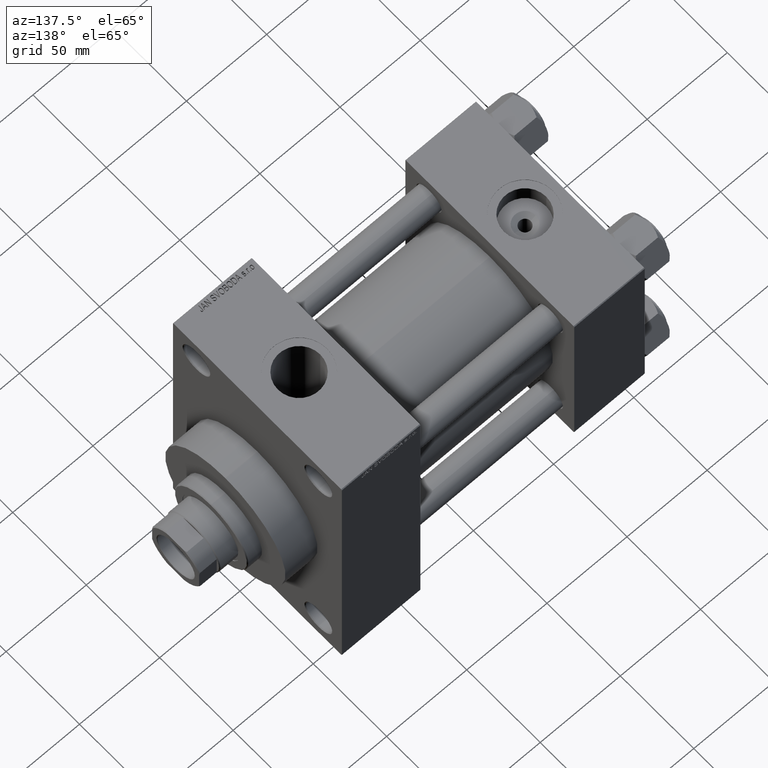
[diagram: clean part render]
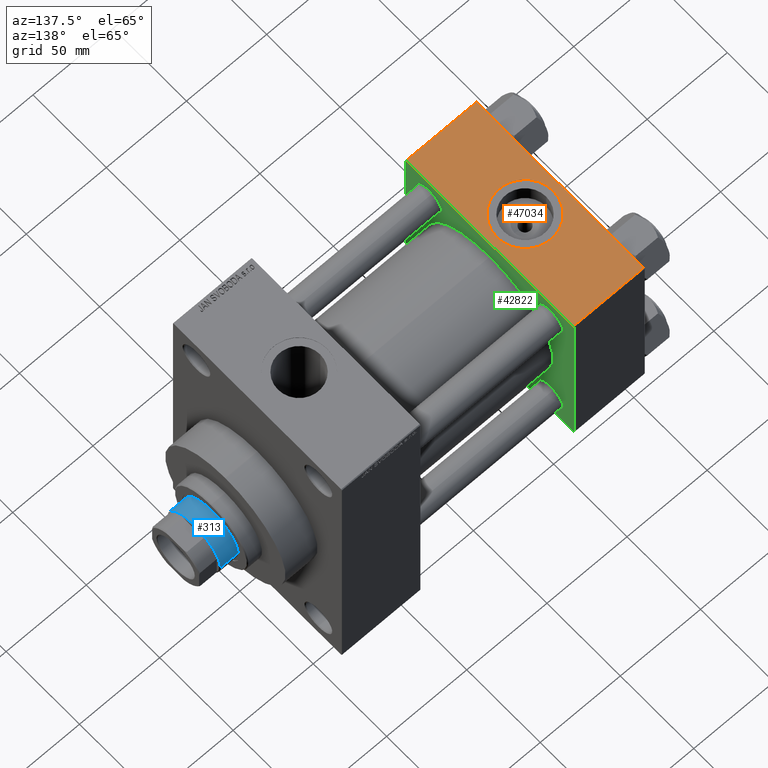
[diagram: same view with three faces highlighted in distinct colors, each labeled with its STEP entity id]
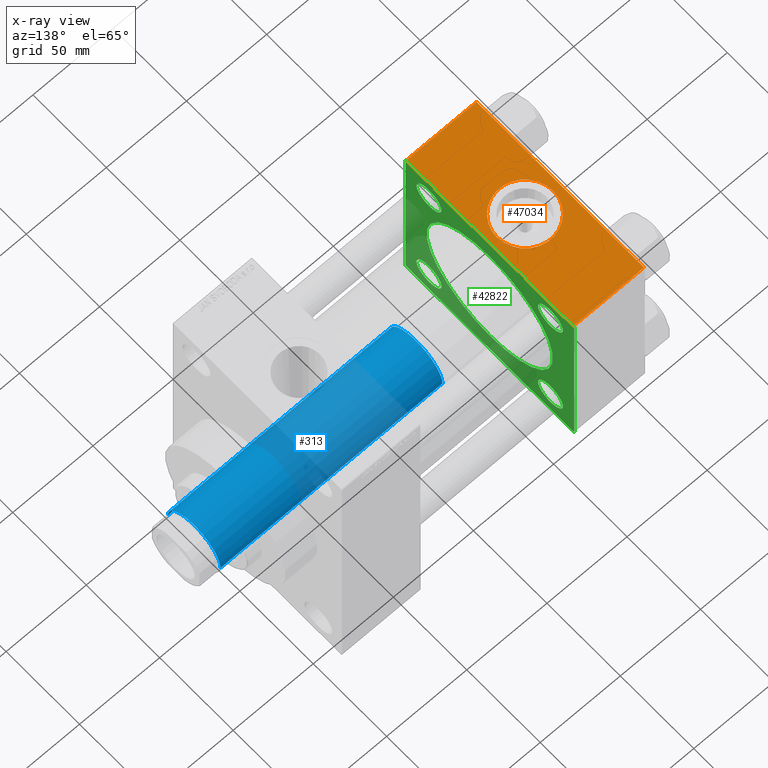
[diagram: x-ray of the same camera — body ghosted, the three highlighted faces saturated]
A machine part, auxiliary view with three faces highlighted in distinct colors.
The next image is the same camera in x-ray (body ghosted, the three faces saturated) — at least one of them is partly hidden behind the body in this view.
Their STEP definitions:

[orange] entity #47034 — the highlighted planar face has unit normal (0, 0, -1).
#345 = FACE_OUTER_BOUND ( 'NONE', #2074, .T. ) ;
#806 = VECTOR ( 'NONE', #2019, 1000.000000000000000 ) ;
#1902 = CARTESIAN_POINT ( 'NONE',  ( 44.00000000000000000, -57.00000000000003553, 57.49999999999999289 ) ) ;
#2019 = DIRECTION ( 'NONE',  ( 0.000000000000000000, -1.000000000000000000, -1.206764157201257045E-16 ) ) ;
#2074 = EDGE_LOOP ( 'NONE', ( #25053, #15285, #14629, #14572 ) ) ;
#3746 = VERTEX_POINT ( 'NONE', #45024 ) ;
#4203 = DIRECTION ( 'NONE',  ( 0.000000000000000000, 1.206764157201257045E-16, -1.000000000000000000 ) ) ;
#5357 = CARTESIAN_POINT ( 'NONE',  ( 0.000000000000000000, 57.00000000000000711, 57.50000000000000711 ) ) ;
#5647 = LINE ( 'NONE', #46583, #806 ) ;
#8378 = VECTOR ( 'NONE', #31383, 1000.000000000000000 ) ;
#10355 = DIRECTION ( 'NONE',  ( 0.000000000000000000, -1.000000000000000000, -1.206764157201257045E-16 ) ) ;
#10993 = CARTESIAN_POINT ( 'NONE',  ( 22.00000000000000000, -8.673617379884035472E-15, 57.50000000000000000 ) ) ;
#12166 = PLANE ( 'NONE',  #46233 ) ;
#13172 = CARTESIAN_POINT ( 'NONE',  ( 39.50000000000000000, -8.673617379884035472E-15, 57.50000000000000000 ) ) ;
#14012 = EDGE_CURVE ( 'NONE', #36218, #3746, #47196, .T. ) ;
#14572 = ORIENTED_EDGE ( 'NONE', *, *, #38590, .T. ) ;
#14629 = ORIENTED_EDGE ( 'NONE', *, *, #47182, .F. ) ;
#15285 = ORIENTED_EDGE ( 'NONE', *, *, #40711, .T. ) ;
#16393 = LINE ( 'NONE', #1902, #32325 ) ;
#16534 = VERTEX_POINT ( 'NONE', #43621 ) ;
#16944 = CARTESIAN_POINT ( 'NONE',  ( 0.000000000000000000, 57.00000000000000711, 57.50000000000000711 ) ) ;
#17121 = VERTEX_POINT ( 'NONE', #34580 ) ;
#18342 = VERTEX_POINT ( 'NONE', #13172 ) ;
#22298 = DIRECTION ( 'NONE',  ( 0.000000000000000000, 0.000000000000000000, 1.000000000000000000 ) ) ;
#23120 = AXIS2_PLACEMENT_3D ( 'NONE', #10993, #22298, #25433 ) ;
#24853 = LINE ( 'NONE', #16944, #8378 ) ;
#25053 = ORIENTED_EDGE ( 'NONE', *, *, #14012, .T. ) ;
#25433 = DIRECTION ( 'NONE',  ( 1.000000000000000000, 0.000000000000000000, 0.000000000000000000 ) ) ;
#26606 = DIRECTION ( 'NONE',  ( 0.000000000000000000, 1.000000000000000000, 1.206764157201257045E-16 ) ) ;
#29990 = FACE_BOUND ( 'NONE', #36593, .T. ) ;
#31383 = DIRECTION ( 'NONE',  ( -1.000000000000000000, 0.000000000000000000, 0.000000000000000000 ) ) ;
#31592 = CIRCLE ( 'NONE', #23120, 17.50000000000000000 ) ;
#32325 = VECTOR ( 'NONE', #38309, 1000.000000000000000 ) ;
#34098 = VECTOR ( 'NONE', #10355, 1000.000000000000000 ) ;
#34404 = CIRCLE ( 'NONE', #40557, 17.50000000000000000 ) ;
#34576 = EDGE_CURVE ( 'NONE', #45565, #18342, #34404, .T. ) ;
#34580 = CARTESIAN_POINT ( 'NONE',  ( 44.00000000000000000, -57.00000000000003553, 57.49999999999999289 ) ) ;
#36218 = VERTEX_POINT ( 'NONE', #5357 ) ;
#36593 = EDGE_LOOP ( 'NONE', ( #41360, #40649 ) ) ;
#37471 = CARTESIAN_POINT ( 'NONE',  ( 44.00000000000000000, 57.49999999999999289, 57.50000000000000711 ) ) ;
#38309 = DIRECTION ( 'NONE',  ( 1.000000000000000000, 0.000000000000000000, 0.000000000000000000 ) ) ;
#38590 = EDGE_CURVE ( 'NONE', #16534, #36218, #24853, .T. ) ;
#39607 = CARTESIAN_POINT ( 'NONE',  ( 22.00000000000000000, -8.673617379884035472E-15, 57.50000000000000000 ) ) ;
#39758 = CARTESIAN_POINT ( 'NONE',  ( 0.000000000000000000, 57.49999999999999289, 57.50000000000000711 ) ) ;
#40431 = CARTESIAN_POINT ( 'NONE',  ( 4.499999999999997335, -6.530485481376167224E-15, 57.50000000000000000 ) ) ;
#40557 = AXIS2_PLACEMENT_3D ( 'NONE', #39607, #42263, #42968 ) ;
#40649 = ORIENTED_EDGE ( 'NONE', *, *, #34576, .F. ) ;
#40711 = EDGE_CURVE ( 'NONE', #3746, #17121, #16393, .T. ) ;
#41360 = ORIENTED_EDGE ( 'NONE', *, *, #42442, .F. ) ;
#42263 = DIRECTION ( 'NONE',  ( 0.000000000000000000, 0.000000000000000000, 1.000000000000000000 ) ) ;
#42442 = EDGE_CURVE ( 'NONE', #18342, #45565, #31592, .T. ) ;
#42968 = DIRECTION ( 'NONE',  ( 1.000000000000000000, 0.000000000000000000, 0.000000000000000000 ) ) ;
#43621 = CARTESIAN_POINT ( 'NONE',  ( 44.00000000000000000, 57.00000000000000711, 57.50000000000000711 ) ) ;
#45024 = CARTESIAN_POINT ( 'NONE',  ( 0.000000000000000000, -57.00000000000003553, 57.49999999999999289 ) ) ;
#45565 = VERTEX_POINT ( 'NONE', #40431 ) ;
#46233 = AXIS2_PLACEMENT_3D ( 'NONE', #37471, #4203, #26606 ) ;
#46583 = CARTESIAN_POINT ( 'NONE',  ( 44.00000000000000000, 57.49999999999999289, 57.50000000000000711 ) ) ;
#47034 = ADVANCED_FACE ( 'NONE', ( #29990, #345 ), #12166, .F. ) ;
#47182 = EDGE_CURVE ( 'NONE', #16534, #17121, #5647, .T. ) ;
#47196 = LINE ( 'NONE', #39758, #34098 ) ;

[blue] entity #313 — the highlighted cylindrical surface (partial cylindrical patch) has radius 18 mm, axis along (-1, 0, 0).
#313 = ADVANCED_FACE ( 'NONE', ( #11708 ), #41577, .T. ) ;
#1558 = DIRECTION ( 'NONE',  ( -0.000000000000000000, -0.000000000000000000, -1.000000000000000000 ) ) ;
#4322 = ORIENTED_EDGE ( 'NONE', *, *, #18493, .T. ) ;
#6642 = CARTESIAN_POINT ( 'NONE',  ( -18.00000000000000000, 0.000000000000000000, 184.4999999999999716 ) ) ;
#7129 = ORIENTED_EDGE ( 'NONE', *, *, #11880, .T. ) ;
#8198 = CARTESIAN_POINT ( 'NONE',  ( -18.00000000000000000, 0.000000000000000000, 185.0000000000000000 ) ) ;
#9396 = AXIS2_PLACEMENT_3D ( 'NONE', #31256, #43046, #13196 ) ;
#9904 = VERTEX_POINT ( 'NONE', #13514 ) ;
#10999 = AXIS2_PLACEMENT_3D ( 'NONE', #44671, #11680, #37695 ) ;
#11338 = DIRECTION ( 'NONE',  ( -0.000000000000000000, -0.000000000000000000, -1.000000000000000000 ) ) ;
#11680 = DIRECTION ( 'NONE',  ( 0.000000000000000000, 0.000000000000000000, -1.000000000000000000 ) ) ;
#11708 = FACE_OUTER_BOUND ( 'NONE', #30933, .T. ) ;
#11880 = EDGE_CURVE ( 'NONE', #34856, #9904, #34029, .T. ) ;
#11935 = CARTESIAN_POINT ( 'NONE',  ( -18.00000000000000000, 0.000000000000000000, 46.00000000000000000 ) ) ;
#12670 = CARTESIAN_POINT ( 'NONE',  ( 0.000000000000000000, 0.000000000000000000, 185.0000000000000000 ) ) ;
#13196 = DIRECTION ( 'NONE',  ( 1.000000000000000000, 0.000000000000000000, 0.000000000000000000 ) ) ;
#13514 = CARTESIAN_POINT ( 'NONE',  ( 18.00000000000000000, 2.204364238465235428E-15, 46.00000000000000000 ) ) ;
#15127 = DIRECTION ( 'NONE',  ( -0.000000000000000000, -0.000000000000000000, -1.000000000000000000 ) ) ;
#16289 = DIRECTION ( 'NONE',  ( -1.000000000000000000, 0.000000000000000000, 0.000000000000000000 ) ) ;
#17488 = EDGE_CURVE ( 'NONE', #46017, #34856, #32803, .T. ) ;
#18493 = EDGE_CURVE ( 'NONE', #42797, #46017, #37942, .T. ) ;
#20885 = EDGE_CURVE ( 'NONE', #42797, #9904, #23044, .T. ) ;
#23044 = LINE ( 'NONE', #33445, #23373 ) ;
#23373 = VECTOR ( 'NONE', #15127, 1000.000000000000000 ) ;
#26352 = VECTOR ( 'NONE', #11338, 1000.000000000000000 ) ;
#27248 = ORIENTED_EDGE ( 'NONE', *, *, #17488, .T. ) ;
#30933 = EDGE_LOOP ( 'NONE', ( #40530, #4322, #27248, #7129 ) ) ;
#31256 = CARTESIAN_POINT ( 'NONE',  ( 0.000000000000000000, 0.000000000000000000, 46.00000000000000000 ) ) ;
#32803 = LINE ( 'NONE', #8198, #26352 ) ;
#33445 = CARTESIAN_POINT ( 'NONE',  ( 18.00000000000000000, 2.204364238465235428E-15, 185.0000000000000000 ) ) ;
#34029 = CIRCLE ( 'NONE', #9396, 18.00000000000000000 ) ;
#34856 = VERTEX_POINT ( 'NONE', #11935 ) ;
#37695 = DIRECTION ( 'NONE',  ( 1.000000000000000000, 0.000000000000000000, 0.000000000000000000 ) ) ;
#37942 = CIRCLE ( 'NONE', #10999, 18.00000000000000000 ) ;
#40530 = ORIENTED_EDGE ( 'NONE', *, *, #20885, .F. ) ;
#41136 = AXIS2_PLACEMENT_3D ( 'NONE', #12670, #1558, #16289 ) ;
#41577 = CYLINDRICAL_SURFACE ( 'NONE', #41136, 18.00000000000000000 ) ;
#41938 = CARTESIAN_POINT ( 'NONE',  ( 18.00000000000000000, 2.204364238465235428E-15, 184.4999999999999716 ) ) ;
#42797 = VERTEX_POINT ( 'NONE', #41938 ) ;
#43046 = DIRECTION ( 'NONE',  ( 0.000000000000000000, 0.000000000000000000, 1.000000000000000000 ) ) ;
#44671 = CARTESIAN_POINT ( 'NONE',  ( 0.000000000000000000, 0.000000000000000000, 184.4999999999999716 ) ) ;
#46017 = VERTEX_POINT ( 'NONE', #6642 ) ;

[green] entity #42822 — the highlighted planar face has unit normal (-1, 0, 0).
#359 = CARTESIAN_POINT ( 'NONE',  ( 44.00000000000000000, 2.663896022368408223E-15, -43.00000000000000000 ) ) ;
#806 = VECTOR ( 'NONE', #2019, 1000.000000000000000 ) ;
#1034 = AXIS2_PLACEMENT_3D ( 'NONE', #20752, #46285, #9675 ) ;
#1809 = CIRCLE ( 'NONE', #1034, 8.500000000000007105 ) ;
#1945 = VERTEX_POINT ( 'NONE', #34847 ) ;
#1946 = EDGE_CURVE ( 'NONE', #18011, #16534, #27349, .T. ) ;
#2019 = DIRECTION ( 'NONE',  ( 0.000000000000000000, -1.000000000000000000, -1.206764157201257045E-16 ) ) ;
#2080 = AXIS2_PLACEMENT_3D ( 'NONE', #18137, #2949, #47278 ) ;
#2189 = CARTESIAN_POINT ( 'NONE',  ( 44.00000000000000000, 41.34999999999999432, -49.85000000000001563 ) ) ;
#2207 = CARTESIAN_POINT ( 'NONE',  ( 44.00000000000000000, 57.49999999999999289, 57.00000000000003553 ) ) ;
#2630 = DIRECTION ( 'NONE',  ( -1.000000000000000000, 0.000000000000000000, -0.000000000000000000 ) ) ;
#2949 = DIRECTION ( 'NONE',  ( -1.000000000000000000, 0.000000000000000000, -0.000000000000000000 ) ) ;
#3366 = ORIENTED_EDGE ( 'NONE', *, *, #47182, .T. ) ;
#3490 = DIRECTION ( 'NONE',  ( 0.000000000000000000, 0.000000000000000000, 1.000000000000000000 ) ) ;
#3630 = VECTOR ( 'NONE', #14585, 1000.000000000000000 ) ;
#4217 = VERTEX_POINT ( 'NONE', #14121 ) ;
#4250 = EDGE_CURVE ( 'NONE', #1945, #31777, #17614, .T. ) ;
#4827 = DIRECTION ( 'NONE',  ( 0.000000000000000000, 0.000000000000000000, 1.000000000000000000 ) ) ;
#5647 = LINE ( 'NONE', #46583, #806 ) ;
#5670 = AXIS2_PLACEMENT_3D ( 'NONE', #27493, #34514, #42207 ) ;
#6002 = VECTOR ( 'NONE', #46250, 1000.000000000000114 ) ;
#6046 = VERTEX_POINT ( 'NONE', #40374 ) ;
#6193 = CARTESIAN_POINT ( 'NONE',  ( 44.00000000000000000, -41.34999999999998721, -41.35000000000000853 ) ) ;
#6755 = EDGE_LOOP ( 'NONE', ( #23844, #9606 ) ) ;
#6786 = CARTESIAN_POINT ( 'NONE',  ( 44.00000000000000000, 57.49999999999999289, 57.50000000000000711 ) ) ;
#7382 = CIRCLE ( 'NONE', #40449, 43.00000000000000000 ) ;
#7708 = ORIENTED_EDGE ( 'NONE', *, *, #28985, .T. ) ;
#9139 = CARTESIAN_POINT ( 'NONE',  ( 44.00000000000000000, -41.34999999999998721, -49.85000000000002274 ) ) ;
#9252 = EDGE_CURVE ( 'NONE', #9895, #25168, #25511, .T. ) ;
#9346 = CARTESIAN_POINT ( 'NONE',  ( 44.00000000000000000, 41.34999999999999432, 41.35000000000000142 ) ) ;
#9347 = AXIS2_PLACEMENT_3D ( 'NONE', #25140, #28298, #42996 ) ;
#9502 = EDGE_CURVE ( 'NONE', #6046, #4217, #38034, .T. ) ;
#9540 = ORIENTED_EDGE ( 'NONE', *, *, #24985, .T. ) ;
#9578 = DIRECTION ( 'NONE',  ( -1.000000000000000000, 0.000000000000000000, -0.000000000000000000 ) ) ;
#9606 = ORIENTED_EDGE ( 'NONE', *, *, #16391, .F. ) ;
#9675 = DIRECTION ( 'NONE',  ( 0.000000000000000000, 0.000000000000000000, 1.000000000000000000 ) ) ;
#9895 = VERTEX_POINT ( 'NONE', #34734 ) ;
#11197 = ORIENTED_EDGE ( 'NONE', *, *, #36478, .T. ) ;
#11627 = EDGE_CURVE ( 'NONE', #18011, #25168, #36198, .T. ) ;
#12251 = CARTESIAN_POINT ( 'NONE',  ( 44.00000000000000000, -57.50000000000000711, 57.49999999999999289 ) ) ;
#12549 = LINE ( 'NONE', #31560, #6002 ) ;
#12841 = VERTEX_POINT ( 'NONE', #20251 ) ;
#13018 = FACE_BOUND ( 'NONE', #13578, .T. ) ;
#13578 = EDGE_LOOP ( 'NONE', ( #42710, #20012 ) ) ;
#13673 = DIRECTION ( 'NONE',  ( 0.000000000000000000, 0.000000000000000000, 1.000000000000000000 ) ) ;
#13965 = CARTESIAN_POINT ( 'NONE',  ( 44.00000000000000000, 0.000000000000000000, 0.000000000000000000 ) ) ;
#14121 = CARTESIAN_POINT ( 'NONE',  ( 44.00000000000000000, -57.50000000000000711, -57.00000000000000711 ) ) ;
#14444 = FACE_BOUND ( 'NONE', #39983, .T. ) ;
#14585 = DIRECTION ( 'NONE',  ( 0.000000000000000000, -1.000000000000000000, -1.206764157201257045E-16 ) ) ;
#16276 = CARTESIAN_POINT ( 'NONE',  ( 44.00000000000000000, -41.34999999999998721, 49.85000000000002274 ) ) ;
#16391 = EDGE_CURVE ( 'NONE', #43341, #18366, #24127, .T. ) ;
#16446 = EDGE_CURVE ( 'NONE', #35201, #23495, #1809, .T. ) ;
#16531 = CARTESIAN_POINT ( 'NONE',  ( 44.00000000000000000, 57.00000000000000711, 57.50000000000000711 ) ) ;
#16534 = VERTEX_POINT ( 'NONE', #43621 ) ;
#16640 = FACE_BOUND ( 'NONE', #34085, .T. ) ;
#17121 = VERTEX_POINT ( 'NONE', #34580 ) ;
#17614 = CIRCLE ( 'NONE', #37704, 8.500000000000007105 ) ;
#18011 = VERTEX_POINT ( 'NONE', #2207 ) ;
#18055 = FACE_BOUND ( 'NONE', #32994, .T. ) ;
#18137 = CARTESIAN_POINT ( 'NONE',  ( 44.00000000000000000, -41.34999999999998721, 41.35000000000000853 ) ) ;
#18284 = DIRECTION ( 'NONE',  ( -0.000000000000000000, 0.000000000000000000, 1.000000000000000000 ) ) ;
#18291 = CARTESIAN_POINT ( 'NONE',  ( 44.00000000000000000, 57.49999999999999289, -57.00000000000000711 ) ) ;
#18366 = VERTEX_POINT ( 'NONE', #38947 ) ;
#20012 = ORIENTED_EDGE ( 'NONE', *, *, #4250, .T. ) ;
#20251 = CARTESIAN_POINT ( 'NONE',  ( 44.00000000000000000, 41.34999999999999432, 49.85000000000001563 ) ) ;
#20576 = CARTESIAN_POINT ( 'NONE',  ( 44.00000000000000000, 41.34999999999999432, 32.84999999999999432 ) ) ;
#20648 = DIRECTION ( 'NONE',  ( -1.000000000000000000, 0.000000000000000000, -0.000000000000000000 ) ) ;
#20752 = CARTESIAN_POINT ( 'NONE',  ( 44.00000000000000000, -41.34999999999998721, -41.35000000000000853 ) ) ;
#20917 = DIRECTION ( 'NONE',  ( 0.000000000000000000, 0.000000000000000000, 1.000000000000000000 ) ) ;
#22392 = ORIENTED_EDGE ( 'NONE', *, *, #11627, .F. ) ;
#23495 = VERTEX_POINT ( 'NONE', #9139 ) ;
#23844 = ORIENTED_EDGE ( 'NONE', *, *, #25122, .F. ) ;
#23990 = VERTEX_POINT ( 'NONE', #29356 ) ;
#24127 = CIRCLE ( 'NONE', #5670, 43.00000000000000000 ) ;
#24985 = EDGE_CURVE ( 'NONE', #12841, #41014, #38145, .T. ) ;
#25122 = EDGE_CURVE ( 'NONE', #18366, #43341, #7382, .T. ) ;
#25140 = CARTESIAN_POINT ( 'NONE',  ( 44.00000000000000000, 41.34999999999999432, -41.35000000000000142 ) ) ;
#25147 = CIRCLE ( 'NONE', #2080, 8.500000000000007105 ) ;
#25168 = VERTEX_POINT ( 'NONE', #43529 ) ;
#25511 = LINE ( 'NONE', #18291, #32410 ) ;
#26429 = CARTESIAN_POINT ( 'NONE',  ( 44.00000000000000000, -57.50000000000000711, 57.00000000000000711 ) ) ;
#27239 = VERTEX_POINT ( 'NONE', #34106 ) ;
#27349 = LINE ( 'NONE', #16531, #27439 ) ;
#27361 = AXIS2_PLACEMENT_3D ( 'NONE', #9346, #9578, #13673 ) ;
#27439 = VECTOR ( 'NONE', #31211, 1000.000000000000114 ) ;
#27493 = CARTESIAN_POINT ( 'NONE',  ( 44.00000000000000000, -2.602085213965210642E-15, 0.000000000000000000 ) ) ;
#28298 = DIRECTION ( 'NONE',  ( -1.000000000000000000, 0.000000000000000000, -0.000000000000000000 ) ) ;
#28485 = ORIENTED_EDGE ( 'NONE', *, *, #46912, .T. ) ;
#28795 = CARTESIAN_POINT ( 'NONE',  ( 44.00000000000000000, 57.49999999999999289, -57.49999999999999289 ) ) ;
#28833 = DIRECTION ( 'NONE',  ( 1.000000000000000000, -0.000000000000000000, 0.000000000000000000 ) ) ;
#28985 = EDGE_CURVE ( 'NONE', #23495, #35201, #38279, .T. ) ;
#29028 = ORIENTED_EDGE ( 'NONE', *, *, #1946, .T. ) ;
#29033 = CARTESIAN_POINT ( 'NONE',  ( 44.00000000000000000, 41.34999999999999432, -41.35000000000000142 ) ) ;
#29122 = PLANE ( 'NONE',  #39310 ) ;
#29356 = CARTESIAN_POINT ( 'NONE',  ( 44.00000000000000000, -41.34999999999998721, 32.85000000000000142 ) ) ;
#30517 = EDGE_CURVE ( 'NONE', #9895, #27239, #40128, .T. ) ;
#30857 = EDGE_CURVE ( 'NONE', #47144, #23990, #25147, .T. ) ;
#31211 = DIRECTION ( 'NONE',  ( 0.000000000000000000, -0.7071067811865573427, 0.7071067811865376918 ) ) ;
#31521 = DIRECTION ( 'NONE',  ( -1.000000000000000000, 0.000000000000000000, -0.000000000000000000 ) ) ;
#31560 = CARTESIAN_POINT ( 'NONE',  ( 44.00000000000000000, -57.00000000000000711, -57.50000000000000711 ) ) ;
#31777 = VERTEX_POINT ( 'NONE', #2189 ) ;
#32410 = VECTOR ( 'NONE', #47192, 1000.000000000000114 ) ;
#32526 = ORIENTED_EDGE ( 'NONE', *, *, #36530, .T. ) ;
#32994 = EDGE_LOOP ( 'NONE', ( #39317, #39916 ) ) ;
#33072 = EDGE_CURVE ( 'NONE', #23990, #47144, #41300, .T. ) ;
#34085 = EDGE_LOOP ( 'NONE', ( #7708, #38930 ) ) ;
#34106 = CARTESIAN_POINT ( 'NONE',  ( 44.00000000000000000, -57.00000000000000711, -57.50000000000000711 ) ) ;
#34514 = DIRECTION ( 'NONE',  ( 1.000000000000000000, -0.000000000000000000, 0.000000000000000000 ) ) ;
#34580 = CARTESIAN_POINT ( 'NONE',  ( 44.00000000000000000, -57.00000000000003553, 57.49999999999999289 ) ) ;
#34645 = DIRECTION ( 'NONE',  ( -0.000000000000000000, -0.7071067811865376918, -0.7071067811865573427 ) ) ;
#34734 = CARTESIAN_POINT ( 'NONE',  ( 44.00000000000000000, 57.00000000000002132, -57.49999999999999289 ) ) ;
#34847 = CARTESIAN_POINT ( 'NONE',  ( 44.00000000000000000, 41.34999999999999432, -32.84999999999999432 ) ) ;
#35201 = VERTEX_POINT ( 'NONE', #37420 ) ;
#35872 = ORIENTED_EDGE ( 'NONE', *, *, #30517, .F. ) ;
#36198 = LINE ( 'NONE', #6786, #40148 ) ;
#36478 = EDGE_CURVE ( 'NONE', #41014, #12841, #41401, .T. ) ;
#36530 = EDGE_CURVE ( 'NONE', #4217, #27239, #12549, .T. ) ;
#37139 = CARTESIAN_POINT ( 'NONE',  ( 44.00000000000000000, 41.34999999999999432, 41.35000000000000142 ) ) ;
#37420 = CARTESIAN_POINT ( 'NONE',  ( 44.00000000000000000, -41.34999999999998721, -32.85000000000000142 ) ) ;
#37704 = AXIS2_PLACEMENT_3D ( 'NONE', #29033, #43729, #3490 ) ;
#37854 = DIRECTION ( 'NONE',  ( -1.000000000000000000, 0.000000000000000000, -0.000000000000000000 ) ) ;
#38034 = LINE ( 'NONE', #12251, #40081 ) ;
#38145 = CIRCLE ( 'NONE', #27361, 8.500000000000007105 ) ;
#38279 = CIRCLE ( 'NONE', #43663, 8.500000000000007105 ) ;
#38930 = ORIENTED_EDGE ( 'NONE', *, *, #16446, .T. ) ;
#38947 = CARTESIAN_POINT ( 'NONE',  ( 44.00000000000000000, -2.602085213965210642E-15, 43.00000000000000000 ) ) ;
#39310 = AXIS2_PLACEMENT_3D ( 'NONE', #13965, #2630, #18284 ) ;
#39317 = ORIENTED_EDGE ( 'NONE', *, *, #33072, .T. ) ;
#39649 = ORIENTED_EDGE ( 'NONE', *, *, #9502, .T. ) ;
#39748 = FACE_BOUND ( 'NONE', #6755, .T. ) ;
#39863 = AXIS2_PLACEMENT_3D ( 'NONE', #43314, #31521, #20917 ) ;
#39884 = EDGE_LOOP ( 'NONE', ( #35872, #40863, #22392, #29028, #3366, #28485, #39649, #32526 ) ) ;
#39916 = ORIENTED_EDGE ( 'NONE', *, *, #30857, .T. ) ;
#39983 = EDGE_LOOP ( 'NONE', ( #11197, #9540 ) ) ;
#40081 = VECTOR ( 'NONE', #45722, 1000.000000000000000 ) ;
#40100 = VECTOR ( 'NONE', #34645, 1000.000000000000114 ) ;
#40104 = CIRCLE ( 'NONE', #9347, 8.500000000000007105 ) ;
#40128 = LINE ( 'NONE', #28795, #3630 ) ;
#40148 = VECTOR ( 'NONE', #43166, 1000.000000000000000 ) ;
#40226 = FACE_OUTER_BOUND ( 'NONE', #39884, .T. ) ;
#40374 = CARTESIAN_POINT ( 'NONE',  ( 44.00000000000000000, -57.50000000000000711, 57.00000000000000711 ) ) ;
#40449 = AXIS2_PLACEMENT_3D ( 'NONE', #47135, #28833, #46891 ) ;
#40863 = ORIENTED_EDGE ( 'NONE', *, *, #9252, .T. ) ;
#41014 = VERTEX_POINT ( 'NONE', #20576 ) ;
#41300 = CIRCLE ( 'NONE', #39863, 8.500000000000007105 ) ;
#41401 = CIRCLE ( 'NONE', #47548, 8.500000000000007105 ) ;
#42115 = DIRECTION ( 'NONE',  ( 0.000000000000000000, 0.000000000000000000, 1.000000000000000000 ) ) ;
#42207 = DIRECTION ( 'NONE',  ( 0.000000000000000000, 0.000000000000000000, 1.000000000000000000 ) ) ;
#42710 = ORIENTED_EDGE ( 'NONE', *, *, #43517, .T. ) ;
#42822 = ADVANCED_FACE ( 'NONE', ( #16640, #13018, #18055, #14444, #39748, #40226 ), #29122, .F. ) ;
#42996 = DIRECTION ( 'NONE',  ( 0.000000000000000000, 0.000000000000000000, 1.000000000000000000 ) ) ;
#43166 = DIRECTION ( 'NONE',  ( 0.000000000000000000, 0.000000000000000000, -1.000000000000000000 ) ) ;
#43314 = CARTESIAN_POINT ( 'NONE',  ( 44.00000000000000000, -41.34999999999998721, 41.35000000000000853 ) ) ;
#43341 = VERTEX_POINT ( 'NONE', #359 ) ;
#43517 = EDGE_CURVE ( 'NONE', #31777, #1945, #40104, .T. ) ;
#43529 = CARTESIAN_POINT ( 'NONE',  ( 44.00000000000000000, 57.49999999999999289, -57.00000000000000711 ) ) ;
#43621 = CARTESIAN_POINT ( 'NONE',  ( 44.00000000000000000, 57.00000000000000711, 57.50000000000000711 ) ) ;
#43663 = AXIS2_PLACEMENT_3D ( 'NONE', #6193, #20648, #42115 ) ;
#43729 = DIRECTION ( 'NONE',  ( -1.000000000000000000, 0.000000000000000000, -0.000000000000000000 ) ) ;
#45465 = LINE ( 'NONE', #26429, #40100 ) ;
#45722 = DIRECTION ( 'NONE',  ( 0.000000000000000000, 0.000000000000000000, -1.000000000000000000 ) ) ;
#46250 = DIRECTION ( 'NONE',  ( 0.000000000000000000, 0.7071067811865474617, -0.7071067811865474617 ) ) ;
#46285 = DIRECTION ( 'NONE',  ( -1.000000000000000000, 0.000000000000000000, -0.000000000000000000 ) ) ;
#46583 = CARTESIAN_POINT ( 'NONE',  ( 44.00000000000000000, 57.49999999999999289, 57.50000000000000711 ) ) ;
#46891 = DIRECTION ( 'NONE',  ( 0.000000000000000000, 0.000000000000000000, 1.000000000000000000 ) ) ;
#46912 = EDGE_CURVE ( 'NONE', #17121, #6046, #45465, .T. ) ;
#47135 = CARTESIAN_POINT ( 'NONE',  ( 44.00000000000000000, -2.602085213965210642E-15, 0.000000000000000000 ) ) ;
#47144 = VERTEX_POINT ( 'NONE', #16276 ) ;
#47182 = EDGE_CURVE ( 'NONE', #16534, #17121, #5647, .T. ) ;
#47192 = DIRECTION ( 'NONE',  ( -0.000000000000000000, 0.7071067811865376918, 0.7071067811865573427 ) ) ;
#47278 = DIRECTION ( 'NONE',  ( 0.000000000000000000, 0.000000000000000000, 1.000000000000000000 ) ) ;
#47548 = AXIS2_PLACEMENT_3D ( 'NONE', #37139, #37854, #4827 ) ;